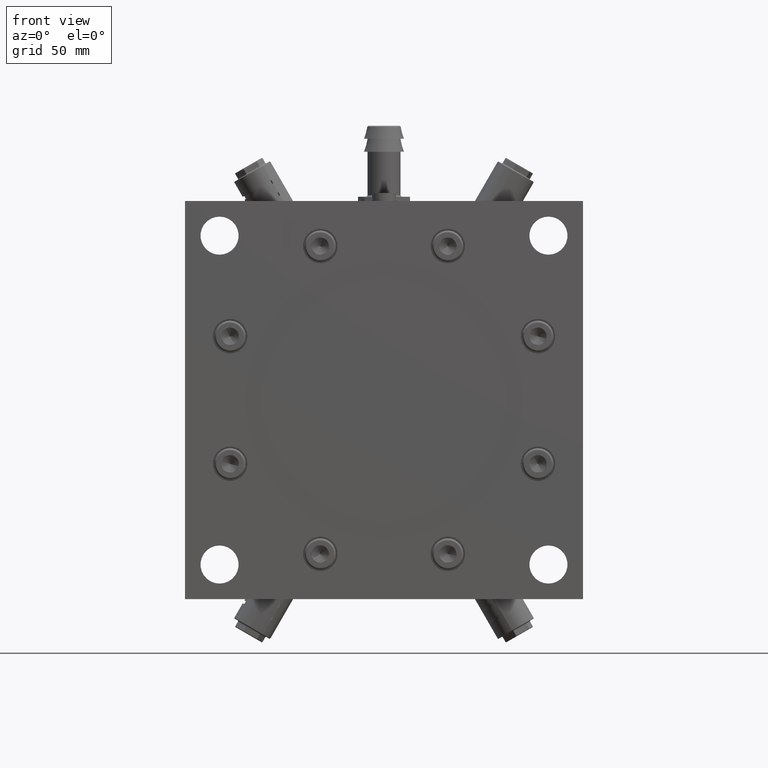
[diagram: clean part render]
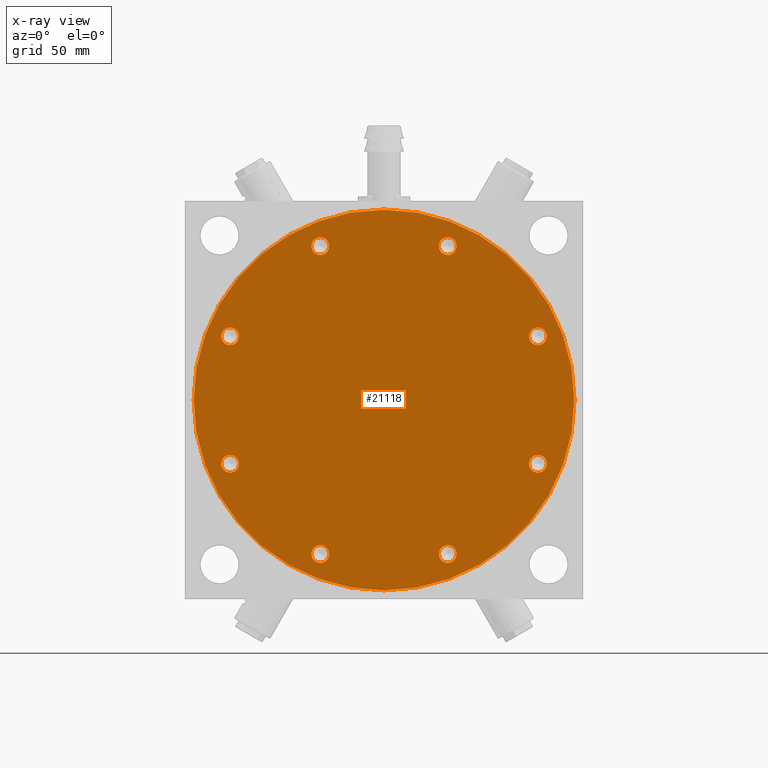
[diagram: x-ray — body ghosted, one internal face saturated and labeled with its STEP entity id]
A machine part, front view, then the same camera in x-ray: the body is ghosted and one INTERNAL B-rep face — a face not visible from any outside direction — is saturated and labeled: STEP entity #21118.
In plain terms, the highlighted planar face has unit normal (0, 1, 0).
Its self-contained STEP definition (entity closure, byte-faithful):
#94 = CIRCLE ( 'NONE', #61952, 5.100000000000002300 ) ;
#859 = CARTESIAN_POINT ( 'NONE',  ( -39.38328036513684800, 30.00000000000000000, -93.34013456351343100 ) ) ;
#987 = CIRCLE ( 'NONE', #55635, 5.100000000000002300 ) ;
#1301 = DIRECTION ( 'NONE',  ( 0.4999999999999991100, 0.0000000000000000000, 0.8660254037844391500 ) ) ;
#1965 = ORIENTED_EDGE ( 'NONE', *, *, #13382, .F. ) ;
#2303 = CARTESIAN_POINT ( 'NONE',  ( 34.28328036514054800, 30.00000000000000000, 84.50667544491015800 ) ) ;
#4001 = AXIS2_PLACEMENT_3D ( 'NONE', #73913, #62468, #50708 ) ;
#4701 = DIRECTION ( 'NONE',  ( -0.4999999999999994400, 0.0000000000000000000, -0.8660254037844389300 ) ) ;
#4744 = DIRECTION ( 'NONE',  ( 0.4999999999999991100, 0.0000000000000000000, 0.8660254037844391500 ) ) ;
#4921 = VERTEX_POINT ( 'NONE', #26937 ) ;
#5830 = ORIENTED_EDGE ( 'NONE', *, *, #38495, .F. ) ;
#6388 = DIRECTION ( 'NONE',  ( 0.4999999999999991100, 0.0000000000000000000, 0.8660254037844391500 ) ) ;
#6566 = CARTESIAN_POINT ( 'NONE',  ( -88.92340500420948500, 30.00000000000000000, 36.83328036513825100 ) ) ;
#6929 = PLANE ( 'NONE',  #34239 ) ;
#7265 = CIRCLE ( 'NONE', #22712, 5.100000000000002300 ) ;
#8544 = EDGE_CURVE ( 'NONE', #47955, #45444, #987, .T. ) ;
#8801 = VERTEX_POINT ( 'NONE', #24077 ) ;
#8844 = CARTESIAN_POINT ( 'NONE',  ( 88.92340500421289600, 30.00000000000000000, 36.83328036514014800 ) ) ;
#8943 = CIRCLE ( 'NONE', #23119, 5.100000000000002300 ) ;
#9450 = AXIS2_PLACEMENT_3D ( 'NONE', #49814, #62056, #33519 ) ;
#9543 = DIRECTION ( 'NONE',  ( 0.5000000000000002200, 0.0000000000000000000, 0.8660254037844384900 ) ) ;
#10100 = DIRECTION ( 'NONE',  ( -0.4999999999999995000, 3.154042683594191300E-017, -0.8660254037844389300 ) ) ;
#10196 = AXIS2_PLACEMENT_3D ( 'NONE', #19805, #65634, #64910 ) ;
#10421 = ORIENTED_EDGE ( 'NONE', *, *, #30272, .F. ) ;
#10472 = DIRECTION ( 'NONE',  ( 6.830016210670590000E-018, 1.000000000000000000, 6.938463090587400000E-018 ) ) ;
#11155 = EDGE_CURVE ( 'NONE', #21739, #55979, #19796, .T. ) ;
#11430 = CIRCLE ( 'NONE', #56312, 5.100000000000005900 ) ;
#12198 = ORIENTED_EDGE ( 'NONE', *, *, #29487, .F. ) ;
#12501 = CARTESIAN_POINT ( 'NONE',  ( -86.37340500420948800, 30.00000000000000000, 41.25000992443889200 ) ) ;
#12964 = CARTESIAN_POINT ( 'NONE',  ( 86.37340500421400700, 30.00000000000000000, -41.25000992444044800 ) ) ;
#13382 = EDGE_CURVE ( 'NONE', #67407, #18385, #17631, .T. ) ;
#13571 = VERTEX_POINT ( 'NONE', #57993 ) ;
#14430 = FACE_BOUND ( 'NONE', #67303, .T. ) ;
#14806 = AXIS2_PLACEMENT_3D ( 'NONE', #73139, #67670, #56463 ) ;
#15027 = DIRECTION ( 'NONE',  ( -6.830016210670590000E-018, -1.000000000000000000, -6.938463090587400000E-018 ) ) ;
#15221 = EDGE_CURVE ( 'NONE', #48003, #41209, #31862, .T. ) ;
#15392 = EDGE_LOOP ( 'NONE', ( #12198, #46094 ) ) ;
#15580 = EDGE_CURVE ( 'NONE', #25598, #18394, #66714, .T. ) ;
#15799 = VERTEX_POINT ( 'NONE', #12501 ) ;
#15858 = AXIS2_PLACEMENT_3D ( 'NONE', #39952, #57472, #23132 ) ;
#16778 = CARTESIAN_POINT ( 'NONE',  ( -36.83328036513685100, 30.00000000000000000, -88.92340500421279600 ) ) ;
#16975 = EDGE_LOOP ( 'NONE', ( #67624, #46645 ) ) ;
#17202 = CARTESIAN_POINT ( 'NONE',  ( -0.9999999999978173000, 30.00000000000000000, -1.732050807569900200 ) ) ;
#17359 = CARTESIAN_POINT ( 'NONE',  ( 55.00000000000208900, 30.00000000000000000, 95.26279441628719300 ) ) ;
#17631 = CIRCLE ( 'NONE', #4001, 5.100000000000002300 ) ;
#18064 = ORIENTED_EDGE ( 'NONE', *, *, #51983, .F. ) ;
#18385 = VERTEX_POINT ( 'NONE', #39803 ) ;
#18394 = VERTEX_POINT ( 'NONE', #33038 ) ;
#18452 = CARTESIAN_POINT ( 'NONE',  ( 88.92340500421400400, 30.00000000000000000, -36.83328036513980700 ) ) ;
#18893 = FACE_BOUND ( 'NONE', #69259, .T. ) ;
#19136 = CARTESIAN_POINT ( 'NONE',  ( 39.38328036514245400, 30.00000000000000000, -84.50667544491165000 ) ) ;
#19796 = CIRCLE ( 'NONE', #30828, 1.999999999999922500 ) ;
#19805 = CARTESIAN_POINT ( 'NONE',  ( 2.143102523343540000E-012, 30.00000000000000000, -1.089716308403832100E-012 ) ) ;
#20053 = CARTESIAN_POINT ( 'NONE',  ( -36.83328036513815100, 30.00000000000000000, 88.92340500421009600 ) ) ;
#20159 = ORIENTED_EDGE ( 'NONE', *, *, #23462, .F. ) ;
#20396 = CIRCLE ( 'NONE', #69815, 5.100000000000002300 ) ;
#21118 = ADVANCED_FACE ( 'NONE', ( #18893, #60174, #14430, #73483, #52993, #27849, #56495, #39455, #71671, #27776 ), #6929, .F. ) ;
#21739 = VERTEX_POINT ( 'NONE', #54448 ) ;
#21939 = ORIENTED_EDGE ( 'NONE', *, *, #58146, .F. ) ;
#22712 = AXIS2_PLACEMENT_3D ( 'NONE', #18452, #24242, #29976 ) ;
#23119 = AXIS2_PLACEMENT_3D ( 'NONE', #31194, #54246, #71198 ) ;
#23132 = DIRECTION ( 'NONE',  ( -0.4999999999999995000, 3.154042683594191300E-017, -0.8660254037844389300 ) ) ;
#23355 = EDGE_LOOP ( 'NONE', ( #59925, #43910 ) ) ;
#23462 = EDGE_CURVE ( 'NONE', #73829, #41758, #20396, .T. ) ;
#24063 = CARTESIAN_POINT ( 'NONE',  ( 88.92340500421400400, 30.00000000000000000, -36.83328036513980700 ) ) ;
#24077 = CARTESIAN_POINT ( 'NONE',  ( -86.37340500420889100, 30.00000000000000000, -32.41655080584105500 ) ) ;
#24242 = DIRECTION ( 'NONE',  ( -6.830016210670590000E-018, -1.000000000000000000, -6.938463090587400000E-018 ) ) ;
#25598 = VERTEX_POINT ( 'NONE', #19136 ) ;
#26937 = CARTESIAN_POINT ( 'NONE',  ( -91.47340500420948200, 30.00000000000000000, 32.41655080583760900 ) ) ;
#26950 = VERTEX_POINT ( 'NONE', #72017 ) ;
#27776 = FACE_OUTER_BOUND ( 'NONE', #23355, .T. ) ;
#27849 = FACE_BOUND ( 'NONE', #58734, .T. ) ;
#28553 = DIRECTION ( 'NONE',  ( -6.830016210670590000E-018, -1.000000000000000000, -6.938463090587400000E-018 ) ) ;
#28977 = CARTESIAN_POINT ( 'NONE',  ( -36.83328036513815100, 30.00000000000000000, 88.92340500421009600 ) ) ;
#29487 = EDGE_CURVE ( 'NONE', #51510, #26950, #94, .T. ) ;
#29976 = DIRECTION ( 'NONE',  ( 0.4999999999999991100, 0.0000000000000000000, 0.8660254037844391500 ) ) ;
#30089 = CARTESIAN_POINT ( 'NONE',  ( -54.99999999999781900, 30.00000000000000000, -95.26279441628938100 ) ) ;
#30272 = EDGE_CURVE ( 'NONE', #15799, #4921, #8943, .T. ) ;
#30828 = AXIS2_PLACEMENT_3D ( 'NONE', #44853, #10472, #4701 ) ;
#30866 = DIRECTION ( 'NONE',  ( -6.830016210670590000E-018, -1.000000000000000000, -6.938463090587400000E-018 ) ) ;
#31044 = AXIS2_PLACEMENT_3D ( 'NONE', #66692, #61943, #10100 ) ;
#31113 = ORIENTED_EDGE ( 'NONE', *, *, #56887, .F. ) ;
#31194 = CARTESIAN_POINT ( 'NONE',  ( -88.92340500420948500, 30.00000000000000000, 36.83328036513825100 ) ) ;
#31477 = CIRCLE ( 'NONE', #14806, 5.100000000000002300 ) ;
#31862 = CIRCLE ( 'NONE', #31044, 110.0000000000001100 ) ;
#32228 = CIRCLE ( 'NONE', #10196, 1.999999999999922500 ) ;
#33038 = CARTESIAN_POINT ( 'NONE',  ( 34.28328036514244600, 30.00000000000000000, -93.34013456351293300 ) ) ;
#33293 = DIRECTION ( 'NONE',  ( -6.830016210670590000E-018, -1.000000000000000000, -6.938463090587400000E-018 ) ) ;
#33519 = DIRECTION ( 'NONE',  ( 0.4999999999999991100, 0.0000000000000000000, 0.8660254037844391500 ) ) ;
#33999 = DIRECTION ( 'NONE',  ( -6.830016210670590000E-018, -1.000000000000000000, -6.938463090587400000E-018 ) ) ;
#34143 = AXIS2_PLACEMENT_3D ( 'NONE', #67541, #33293, #44836 ) ;
#34239 = AXIS2_PLACEMENT_3D ( 'NONE', #53038, #35259, #34748 ) ;
#34445 = CARTESIAN_POINT ( 'NONE',  ( -34.28328036513685400, 30.00000000000000000, -84.50667544491214800 ) ) ;
#34717 = CIRCLE ( 'NONE', #55116, 5.100000000000002300 ) ;
#34748 = DIRECTION ( 'NONE',  ( -0.4999999999999994400, 2.775381965478111900E-017, -0.8660254037844389300 ) ) ;
#34750 = DIRECTION ( 'NONE',  ( 0.4999999999999991100, 0.0000000000000000000, 0.8660254037844391500 ) ) ;
#34844 = DIRECTION ( 'NONE',  ( 0.4999999999999991100, 0.0000000000000000000, 0.8660254037844391500 ) ) ;
#34981 = DIRECTION ( 'NONE',  ( -6.830016210670590000E-018, -1.000000000000000000, -6.938463090587400000E-018 ) ) ;
#35097 = DIRECTION ( 'NONE',  ( 0.4999999999999991100, 0.0000000000000000000, 0.8660254037844391500 ) ) ;
#35259 = DIRECTION ( 'NONE',  ( 1.599497933555880600E-017, 1.000000000000000000, 2.281264487238903700E-017 ) ) ;
#36540 = EDGE_LOOP ( 'NONE', ( #45234, #53282 ) ) ;
#38495 = EDGE_CURVE ( 'NONE', #4921, #15799, #44071, .T. ) ;
#38829 = EDGE_CURVE ( 'NONE', #8801, #46956, #31477, .T. ) ;
#39455 = FACE_BOUND ( 'NONE', #15392, .T. ) ;
#39742 = AXIS2_PLACEMENT_3D ( 'NONE', #8844, #54446, #70915 ) ;
#39803 = CARTESIAN_POINT ( 'NONE',  ( 91.47340500421289300, 30.00000000000000000, 41.25000992444078900 ) ) ;
#39952 = CARTESIAN_POINT ( 'NONE',  ( 2.143102523343540000E-012, 30.00000000000000000, -1.089716308403832100E-012 ) ) ;
#40431 = EDGE_LOOP ( 'NONE', ( #31113, #61011 ) ) ;
#41177 = CARTESIAN_POINT ( 'NONE',  ( 36.83328036514245000, 30.00000000000000000, -88.92340500421229900 ) ) ;
#41209 = VERTEX_POINT ( 'NONE', #30089 ) ;
#41376 = DIRECTION ( 'NONE',  ( -6.830016210670590000E-018, -1.000000000000000000, -6.938463090587400000E-018 ) ) ;
#41758 = VERTEX_POINT ( 'NONE', #44060 ) ;
#42629 = EDGE_CURVE ( 'NONE', #55979, #21739, #32228, .T. ) ;
#43474 = EDGE_CURVE ( 'NONE', #18394, #25598, #11430, .T. ) ;
#43910 = ORIENTED_EDGE ( 'NONE', *, *, #52118, .F. ) ;
#43970 = CIRCLE ( 'NONE', #59065, 5.100000000000002300 ) ;
#44060 = CARTESIAN_POINT ( 'NONE',  ( 39.38328036514055000, 30.00000000000000000, 93.34013456351144100 ) ) ;
#44071 = CIRCLE ( 'NONE', #65194, 5.100000000000002300 ) ;
#44836 = DIRECTION ( 'NONE',  ( 0.4999999999999991100, 0.0000000000000000000, 0.8660254037844391500 ) ) ;
#44853 = CARTESIAN_POINT ( 'NONE',  ( 2.143102523343540000E-012, 30.00000000000000000, -1.089716308403832100E-012 ) ) ;
#45061 = CARTESIAN_POINT ( 'NONE',  ( -34.28328036513815400, 30.00000000000000000, 93.34013456351074500 ) ) ;
#45234 = ORIENTED_EDGE ( 'NONE', *, *, #11155, .T. ) ;
#45430 = AXIS2_PLACEMENT_3D ( 'NONE', #49862, #15027, #9543 ) ;
#45444 = VERTEX_POINT ( 'NONE', #34445 ) ;
#45479 = CIRCLE ( 'NONE', #48105, 5.100000000000002300 ) ;
#46094 = ORIENTED_EDGE ( 'NONE', *, *, #49987, .F. ) ;
#46442 = DIRECTION ( 'NONE',  ( 0.5000000000000002200, 0.0000000000000000000, 0.8660254037844384900 ) ) ;
#46645 = ORIENTED_EDGE ( 'NONE', *, *, #43474, .F. ) ;
#46783 = EDGE_LOOP ( 'NONE', ( #58857, #1965 ) ) ;
#46956 = VERTEX_POINT ( 'NONE', #69666 ) ;
#47862 = CIRCLE ( 'NONE', #39742, 5.100000000000002300 ) ;
#47955 = VERTEX_POINT ( 'NONE', #859 ) ;
#48003 = VERTEX_POINT ( 'NONE', #17359 ) ;
#48105 = AXIS2_PLACEMENT_3D ( 'NONE', #24063, #41376, #35097 ) ;
#48172 = EDGE_CURVE ( 'NONE', #18385, #67407, #47862, .T. ) ;
#49814 = CARTESIAN_POINT ( 'NONE',  ( -36.83328036513685100, 30.00000000000000000, -88.92340500421279600 ) ) ;
#49862 = CARTESIAN_POINT ( 'NONE',  ( 36.83328036514245000, 30.00000000000000000, -88.92340500421229900 ) ) ;
#49987 = EDGE_CURVE ( 'NONE', #26950, #51510, #43970, .T. ) ;
#50708 = DIRECTION ( 'NONE',  ( 0.4999999999999991100, 0.0000000000000000000, 0.8660254037844391500 ) ) ;
#51510 = VERTEX_POINT ( 'NONE', #45061 ) ;
#51983 = EDGE_CURVE ( 'NONE', #66765, #13571, #45479, .T. ) ;
#52118 = EDGE_CURVE ( 'NONE', #41209, #48003, #73157, .T. ) ;
#52993 = FACE_BOUND ( 'NONE', #40431, .T. ) ;
#53038 = CARTESIAN_POINT ( 'NONE',  ( 2.143102523343540000E-012, 30.00000000000000000, -1.089716308403832100E-012 ) ) ;
#53217 = CIRCLE ( 'NONE', #34143, 5.100000000000002300 ) ;
#53282 = ORIENTED_EDGE ( 'NONE', *, *, #42629, .T. ) ;
#54246 = DIRECTION ( 'NONE',  ( -6.830016210670590000E-018, -1.000000000000000000, -6.938463090587400000E-018 ) ) ;
#54446 = DIRECTION ( 'NONE',  ( -6.830016210670590000E-018, -1.000000000000000000, -6.938463090587400000E-018 ) ) ;
#54448 = CARTESIAN_POINT ( 'NONE',  ( 1.000000000002103200, 30.00000000000000000, 1.732050807567721200 ) ) ;
#55116 = AXIS2_PLACEMENT_3D ( 'NONE', #69057, #28553, #34844 ) ;
#55278 = ORIENTED_EDGE ( 'NONE', *, *, #60429, .F. ) ;
#55635 = AXIS2_PLACEMENT_3D ( 'NONE', #16778, #62373, #4744 ) ;
#55979 = VERTEX_POINT ( 'NONE', #17202 ) ;
#56312 = AXIS2_PLACEMENT_3D ( 'NONE', #41177, #69108, #46442 ) ;
#56463 = DIRECTION ( 'NONE',  ( 0.4999999999999991100, 0.0000000000000000000, 0.8660254037844391500 ) ) ;
#56495 = FACE_BOUND ( 'NONE', #57882, .T. ) ;
#56887 = EDGE_CURVE ( 'NONE', #45444, #47955, #74227, .T. ) ;
#57472 = DIRECTION ( 'NONE',  ( 6.830016210670590000E-018, 1.000000000000000000, 6.938463090587400000E-018 ) ) ;
#57882 = EDGE_LOOP ( 'NONE', ( #10421, #5830 ) ) ;
#57993 = CARTESIAN_POINT ( 'NONE',  ( 91.47340500421400100, 30.00000000000000000, -32.41655080583916500 ) ) ;
#58146 = EDGE_CURVE ( 'NONE', #46956, #8801, #34717, .T. ) ;
#58285 = CARTESIAN_POINT ( 'NONE',  ( 36.83328036514055300, 30.00000000000000000, 88.92340500421079200 ) ) ;
#58734 = EDGE_LOOP ( 'NONE', ( #65165, #21939 ) ) ;
#58857 = ORIENTED_EDGE ( 'NONE', *, *, #48172, .F. ) ;
#59065 = AXIS2_PLACEMENT_3D ( 'NONE', #28977, #33999, #34750 ) ;
#59426 = DIRECTION ( 'NONE',  ( 0.4999999999999991100, 0.0000000000000000000, 0.8660254037844391500 ) ) ;
#59925 = ORIENTED_EDGE ( 'NONE', *, *, #15221, .F. ) ;
#60174 = FACE_BOUND ( 'NONE', #46783, .T. ) ;
#60429 = EDGE_CURVE ( 'NONE', #41758, #73829, #53217, .T. ) ;
#61011 = ORIENTED_EDGE ( 'NONE', *, *, #8544, .F. ) ;
#61943 = DIRECTION ( 'NONE',  ( 6.830016210670590000E-018, 1.000000000000000000, 6.938463090587400000E-018 ) ) ;
#61952 = AXIS2_PLACEMENT_3D ( 'NONE', #20053, #30866, #59426 ) ;
#62056 = DIRECTION ( 'NONE',  ( -6.830016210670590000E-018, -1.000000000000000000, -6.938463090587400000E-018 ) ) ;
#62373 = DIRECTION ( 'NONE',  ( -6.830016210670590000E-018, -1.000000000000000000, -6.938463090587400000E-018 ) ) ;
#62468 = DIRECTION ( 'NONE',  ( -6.830016210670590000E-018, -1.000000000000000000, -6.938463090587400000E-018 ) ) ;
#63737 = ORIENTED_EDGE ( 'NONE', *, *, #71100, .F. ) ;
#64910 = DIRECTION ( 'NONE',  ( -0.4999999999999994400, 0.0000000000000000000, -0.8660254037844389300 ) ) ;
#65165 = ORIENTED_EDGE ( 'NONE', *, *, #38829, .F. ) ;
#65194 = AXIS2_PLACEMENT_3D ( 'NONE', #6566, #69615, #1301 ) ;
#65634 = DIRECTION ( 'NONE',  ( 6.830016210670590000E-018, 1.000000000000000000, 6.938463090587400000E-018 ) ) ;
#66692 = CARTESIAN_POINT ( 'NONE',  ( 2.143102523343540000E-012, 30.00000000000000000, -1.089716308403832100E-012 ) ) ;
#66714 = CIRCLE ( 'NONE', #45430, 5.100000000000005900 ) ;
#66765 = VERTEX_POINT ( 'NONE', #12964 ) ;
#67303 = EDGE_LOOP ( 'NONE', ( #63737, #18064 ) ) ;
#67407 = VERTEX_POINT ( 'NONE', #70415 ) ;
#67541 = CARTESIAN_POINT ( 'NONE',  ( 36.83328036514055300, 30.00000000000000000, 88.92340500421079200 ) ) ;
#67624 = ORIENTED_EDGE ( 'NONE', *, *, #15580, .F. ) ;
#67670 = DIRECTION ( 'NONE',  ( -6.830016210670590000E-018, -1.000000000000000000, -6.938463090587400000E-018 ) ) ;
#69057 = CARTESIAN_POINT ( 'NONE',  ( -88.92340500420888800, 30.00000000000000000, -36.83328036514169700 ) ) ;
#69108 = DIRECTION ( 'NONE',  ( -6.830016210670590000E-018, -1.000000000000000000, -6.938463090587400000E-018 ) ) ;
#69259 = EDGE_LOOP ( 'NONE', ( #55278, #20159 ) ) ;
#69615 = DIRECTION ( 'NONE',  ( -6.830016210670590000E-018, -1.000000000000000000, -6.938463090587400000E-018 ) ) ;
#69666 = CARTESIAN_POINT ( 'NONE',  ( -91.47340500420888500, 30.00000000000000000, -41.25000992444233800 ) ) ;
#69815 = AXIS2_PLACEMENT_3D ( 'NONE', #58285, #34981, #6388 ) ;
#70415 = CARTESIAN_POINT ( 'NONE',  ( 86.37340500421289800, 30.00000000000000000, 32.41655080583950600 ) ) ;
#70915 = DIRECTION ( 'NONE',  ( 0.4999999999999991100, 0.0000000000000000000, 0.8660254037844391500 ) ) ;
#71100 = EDGE_CURVE ( 'NONE', #13571, #66765, #7265, .T. ) ;
#71198 = DIRECTION ( 'NONE',  ( 0.4999999999999991100, 0.0000000000000000000, 0.8660254037844391500 ) ) ;
#71671 = FACE_BOUND ( 'NONE', #36540, .T. ) ;
#72017 = CARTESIAN_POINT ( 'NONE',  ( -39.38328036513815500, 30.00000000000000000, 84.50667544490946200 ) ) ;
#73139 = CARTESIAN_POINT ( 'NONE',  ( -88.92340500420888800, 30.00000000000000000, -36.83328036514169700 ) ) ;
#73157 = CIRCLE ( 'NONE', #15858, 110.0000000000001100 ) ;
#73483 = FACE_BOUND ( 'NONE', #16975, .T. ) ;
#73829 = VERTEX_POINT ( 'NONE', #2303 ) ;
#73913 = CARTESIAN_POINT ( 'NONE',  ( 88.92340500421289600, 30.00000000000000000, 36.83328036514014800 ) ) ;
#74227 = CIRCLE ( 'NONE', #9450, 5.100000000000002300 ) ;